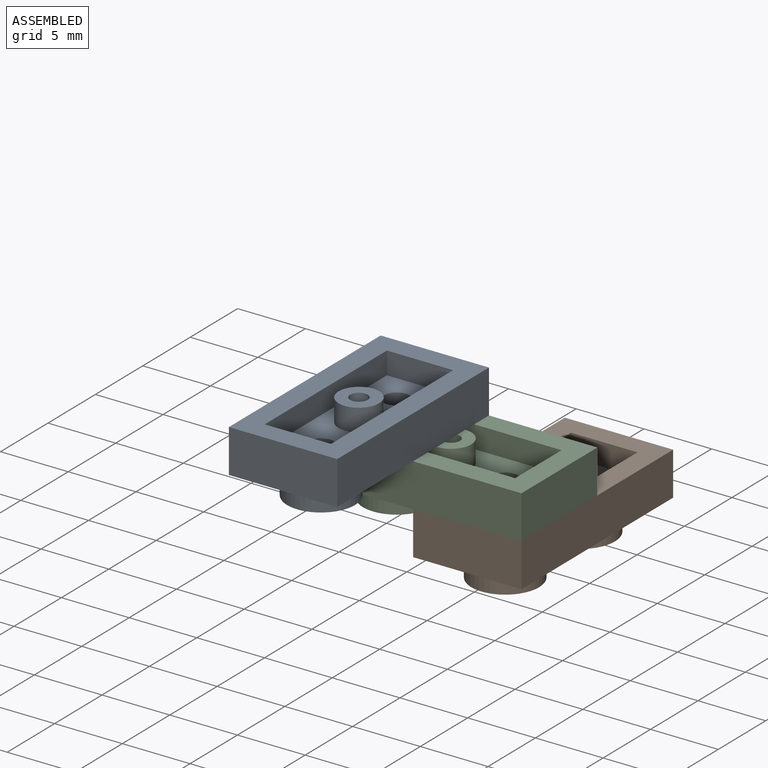
[diagram: assembled view]
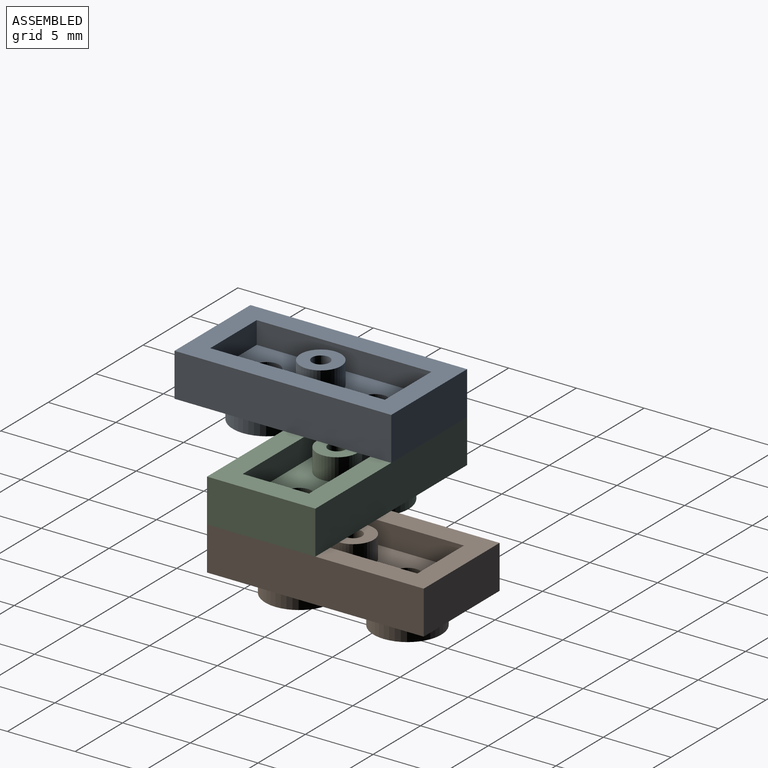
[diagram: assembled view, second angle]
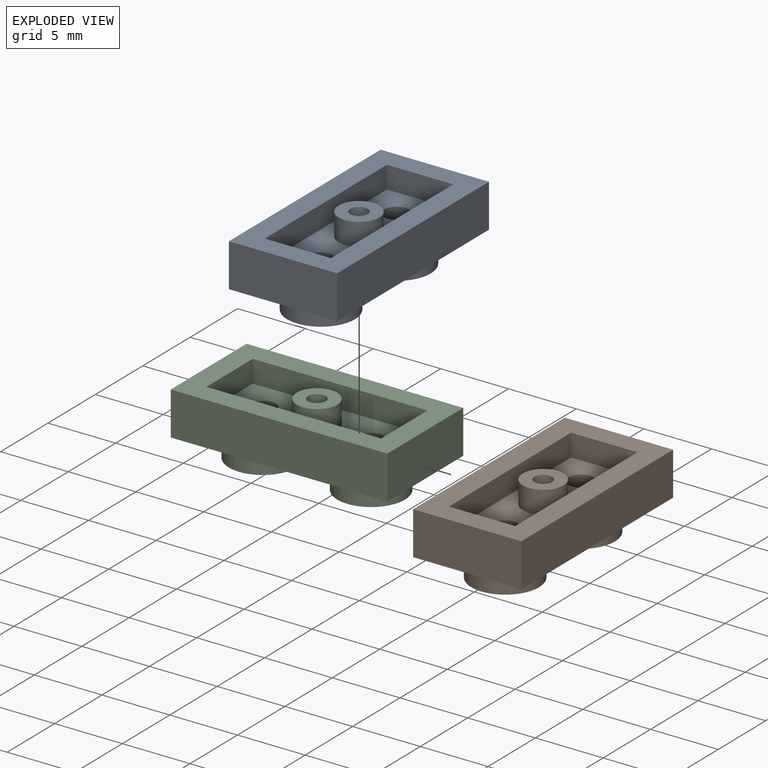
[diagram: exploded view]
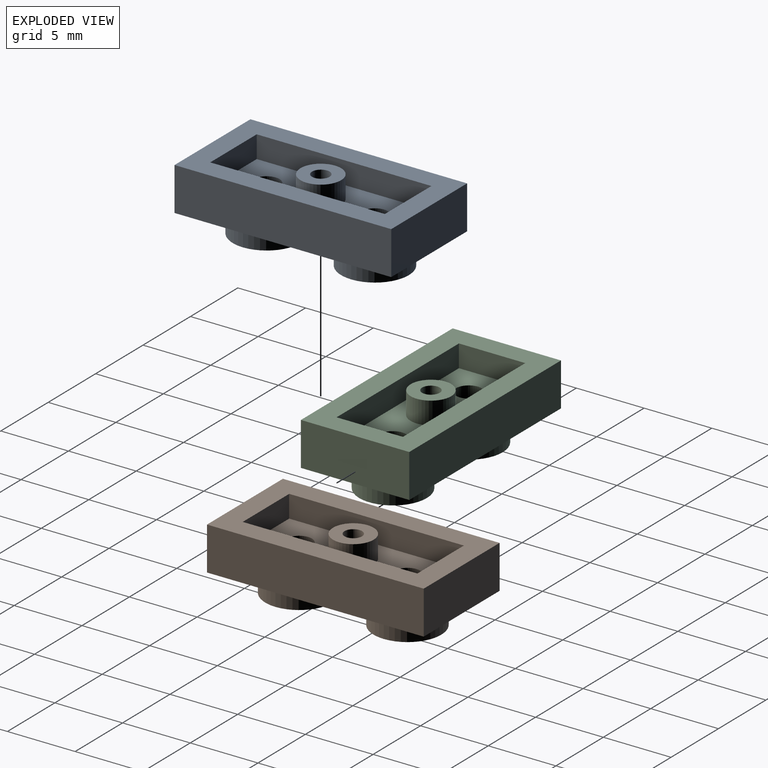
[diagram: exploded view, second angle]
ASSEMBLY  parts=3 mates=2
PART A: 23 faces, bbox 8x16x5 mm
  f0: plane 16x8mm, normal (0,0,1), area 64.8mm2, adj f1,f2,f3,f4,f10,f11,f12,f13
  f1: plane 16x3.2mm, normal (1,0,0), area 51.2mm2, adj f0,f2,f4,f5
  f2: plane 8x3.2mm, normal (0,1,0), area 25.6mm2, adj f0,f1,f3,f5
  f3: plane 16x3.2mm, normal (-1,0,0), area 51.2mm2, adj f0,f2,f4,f5
  f4: plane 8x3.2mm, normal (0,-1,0), area 25.6mm2, adj f0,f1,f3,f5
  f5: plane 16x8mm, normal (0,0,-1), area 88.7mm2, adj f1,f2,f3,f4,f6,f8
  f6: cylinder r=2.5mm len=5mm, axis (0,0,1), area 28.3mm2, adj f5,f7
  f7: plane 5x5mm, normal (0,0,-1), area 19.6mm2, adj f6
  f8: cylinder r=2.5mm len=5mm, axis (0,0,1), area 28.3mm2, adj f5,f9
  f9: plane 5x5mm, normal (0,0,-1), area 19.6mm2, adj f8
  f10: plane 12.9x1.65mm, normal (-1,0,0), area 21.3mm2, adj f0,f11,f13,f14
  f11: plane 4.9x1.65mm, normal (0,-1,0), area 8.1mm2, adj f0,f10,f12,f14
  f12: plane 12.9x1.65mm, normal (1,0,0), area 21.3mm2, adj f0,f11,f13,f14
  f13: plane 4.9x1.65mm, normal (0,1,0), area 8.1mm2, adj f0,f10,f12,f14
  f14: plane 12.9x4.9mm, normal (0,0,1), area 50.5mm2, adj f10,f11,f12,f13,f15,f17,f20
  f15: cylinder r=0.95mm len=1.9mm, axis (0,0,1), area 10.7mm2, adj f14,f16
  f16: plane 1.9x1.9mm, normal (0,0,1), area 2.8mm2, adj f15
  f17: cylinder r=0.95mm len=1.9mm, axis (0,0,1), area 10.7mm2, adj f14,f18
  f18: plane 1.9x1.9mm, normal (0,0,1), area 2.8mm2, adj f17
  f19: plane 3x3mm, normal (0,0,1), area 5.7mm2, adj f20,f21
  f20: cylinder r=1.5mm len=3mm, axis (0,0,-1), area 15.6mm2, adj f14,f19
  f21: cylinder r=0.65mm len=1.3mm, axis (0,0,1), area 5.3mm2, adj f19,f22
  f22: plane 1.3x1.3mm, normal (0,0,1), area 1.3mm2, adj f21
PART B: same geometry as A
PART C: same geometry as A
PLACE A t=(20.32,0.07,-1.19)mm
PLACE B t=(28.32,8.07,-7.59)mm
PLACE C rot(axis=(0,0,-1),90deg) t=(12.32,8.07,-4.39)mm
MATE fastened B.f0 <-> C.f5  axis (0,0,1) through (28.32,8.07,-4.39)mm
MATE fastened C.f0 <-> A.f5  axis (0,0,1) through (12.32,16.07,-1.19)mm
